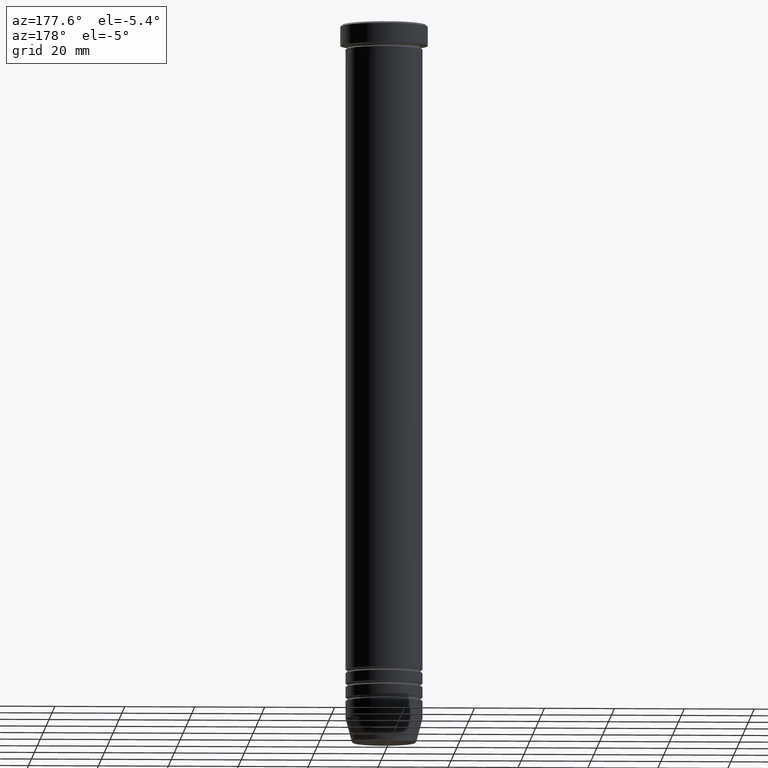
[diagram: clean part render]
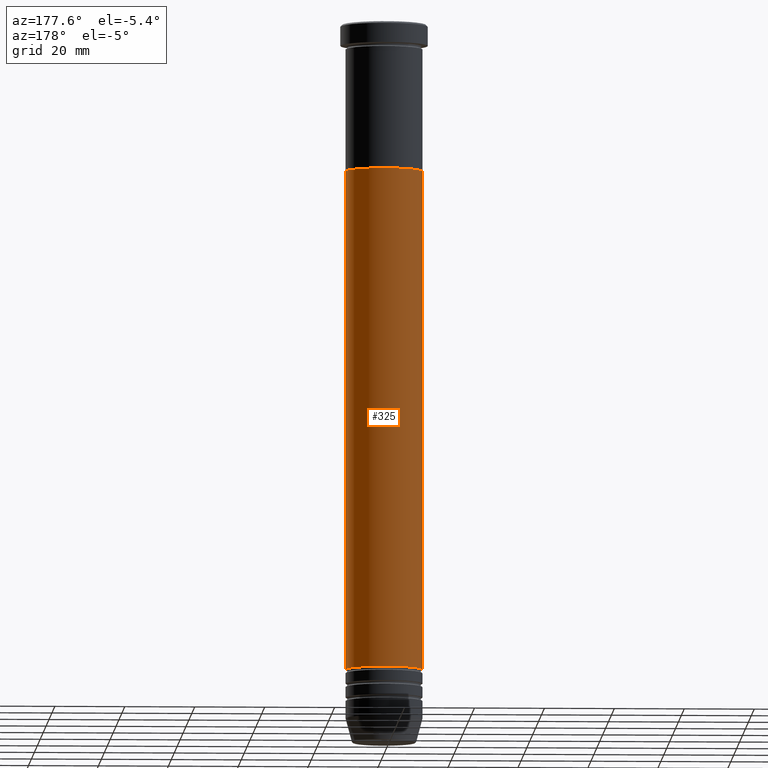
[diagram: same view with one face highlighted and labeled with its STEP entity id]
A machine part, auxiliary view. The second image highlights one B-rep face of the part: STEP entity #325.
In plain terms, the highlighted cylindrical surface (partial cylindrical patch) has radius 11 mm, axis along (-0, -0, 1).
Its self-contained STEP definition (entity closure, byte-faithful):
#49 = LINE ( 'NONE', #219, #1097 ) ;
#52 = EDGE_CURVE ( 'NONE', #167, #889, #377, .T. ) ;
#109 = ORIENTED_EDGE ( 'NONE', *, *, #1032, .T. ) ;
#167 = VERTEX_POINT ( 'NONE', #290 ) ;
#219 = CARTESIAN_POINT ( 'NONE',  ( -10.99999999999999645, 1.347111479062088010E-15, 0.000000000000000000 ) ) ;
#231 = DIRECTION ( 'NONE',  ( -0.000000000000000000, -0.000000000000000000, 1.000000000000000000 ) ) ;
#232 = ORIENTED_EDGE ( 'NONE', *, *, #815, .F. ) ;
#235 = CARTESIAN_POINT ( 'NONE',  ( 0.000000000000000000, 0.000000000000000000, -185.0000000000000284 ) ) ;
#290 = CARTESIAN_POINT ( 'NONE',  ( 10.99999999999999467, 0.000000000000000000, -185.0000000000000284 ) ) ;
#305 = CARTESIAN_POINT ( 'NONE',  ( -10.99999999999999822, 1.347111479062088405E-15, -41.99999999999999289 ) ) ;
#311 = LINE ( 'NONE', #1014, #633 ) ;
#325 = ADVANCED_FACE ( 'NONE', ( #1060 ), #340, .T. ) ;
#330 = CARTESIAN_POINT ( 'NONE',  ( 0.000000000000000000, 0.000000000000000000, 0.000000000000000000 ) ) ;
#335 = AXIS2_PLACEMENT_3D ( 'NONE', #330, #597, #964 ) ;
#340 = CYLINDRICAL_SURFACE ( 'NONE', #335, 10.99999999999999645 ) ;
#377 = CIRCLE ( 'NONE', #704, 10.99999999999999467 ) ;
#387 = ORIENTED_EDGE ( 'NONE', *, *, #52, .T. ) ;
#569 = DIRECTION ( 'NONE',  ( 1.000000000000000000, 0.000000000000000000, 0.000000000000000000 ) ) ;
#584 = ORIENTED_EDGE ( 'NONE', *, *, #990, .F. ) ;
#597 = DIRECTION ( 'NONE',  ( -0.000000000000000000, -0.000000000000000000, 1.000000000000000000 ) ) ;
#633 = VECTOR ( 'NONE', #1138, 1000.000000000000000 ) ;
#640 = EDGE_LOOP ( 'NONE', ( #387, #109, #584, #232 ) ) ;
#682 = AXIS2_PLACEMENT_3D ( 'NONE', #938, #1006, #824 ) ;
#704 = AXIS2_PLACEMENT_3D ( 'NONE', #235, #231, #569 ) ;
#708 = CIRCLE ( 'NONE', #682, 11.00000000000000000 ) ;
#728 = CARTESIAN_POINT ( 'NONE',  ( 11.00000000000000000, 0.000000000000000000, -41.99999999999999289 ) ) ;
#814 = VERTEX_POINT ( 'NONE', #305 ) ;
#815 = EDGE_CURVE ( 'NONE', #167, #983, #311, .T. ) ;
#824 = DIRECTION ( 'NONE',  ( 1.000000000000000000, 0.000000000000000000, 0.000000000000000000 ) ) ;
#889 = VERTEX_POINT ( 'NONE', #986 ) ;
#938 = CARTESIAN_POINT ( 'NONE',  ( 0.000000000000000000, 0.000000000000000000, -41.99999999999999289 ) ) ;
#964 = DIRECTION ( 'NONE',  ( 1.000000000000000000, 0.000000000000000000, 0.000000000000000000 ) ) ;
#983 = VERTEX_POINT ( 'NONE', #728 ) ;
#986 = CARTESIAN_POINT ( 'NONE',  ( -10.99999999999999467, 1.347111479062087813E-15, -185.0000000000000284 ) ) ;
#990 = EDGE_CURVE ( 'NONE', #983, #814, #708, .T. ) ;
#1006 = DIRECTION ( 'NONE',  ( -0.000000000000000000, -0.000000000000000000, 1.000000000000000000 ) ) ;
#1014 = CARTESIAN_POINT ( 'NONE',  ( 10.99999999999999645, 0.000000000000000000, 0.000000000000000000 ) ) ;
#1029 = DIRECTION ( 'NONE',  ( -0.000000000000000000, -0.000000000000000000, 1.000000000000000000 ) ) ;
#1032 = EDGE_CURVE ( 'NONE', #889, #814, #49, .T. ) ;
#1060 = FACE_OUTER_BOUND ( 'NONE', #640, .T. ) ;
#1097 = VECTOR ( 'NONE', #1029, 1000.000000000000000 ) ;
#1138 = DIRECTION ( 'NONE',  ( -0.000000000000000000, -0.000000000000000000, 1.000000000000000000 ) ) ;